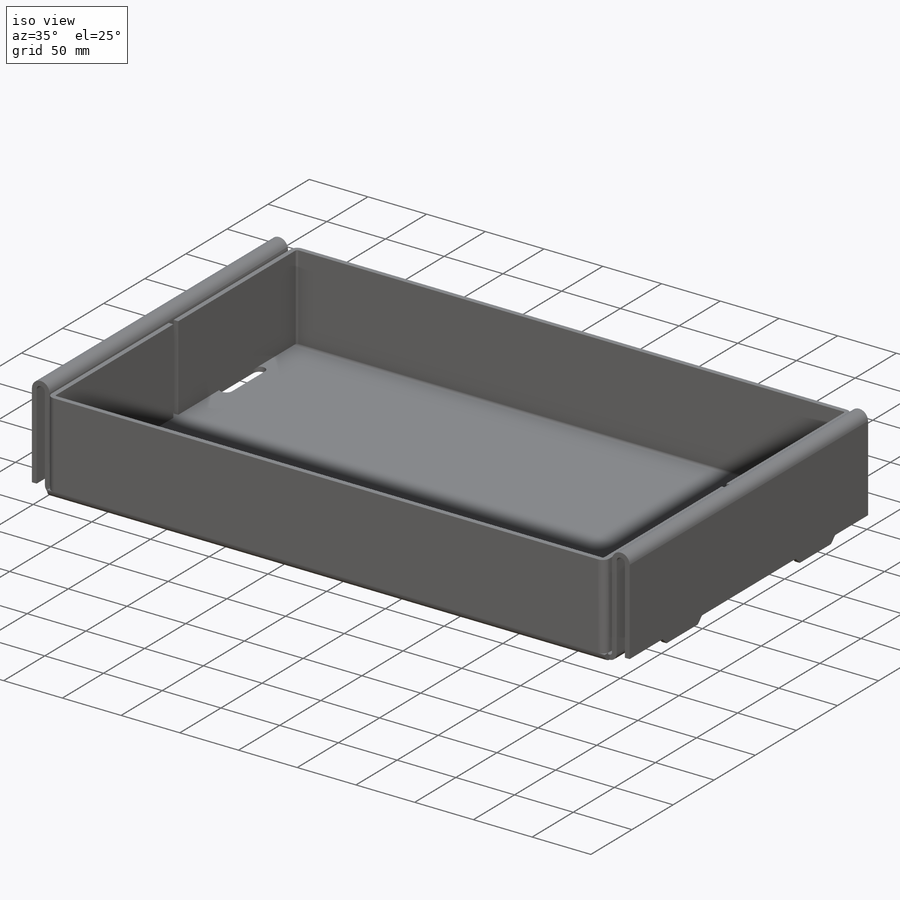
[diagram: iso view]
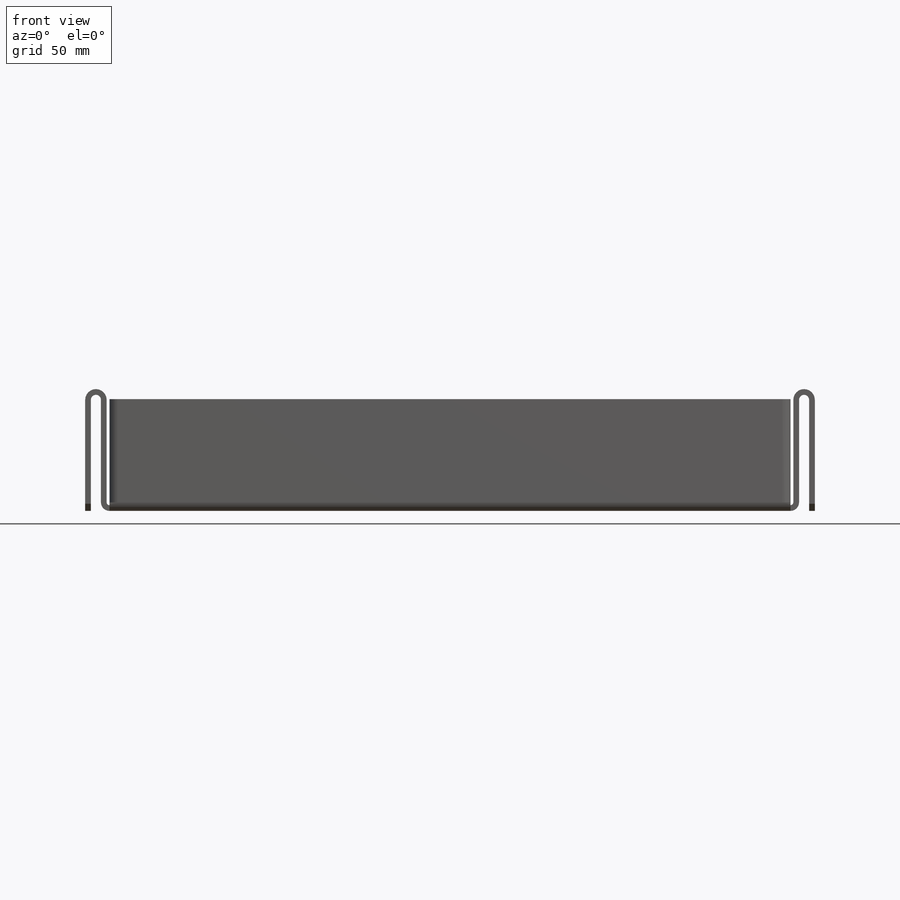
[diagram: front view]
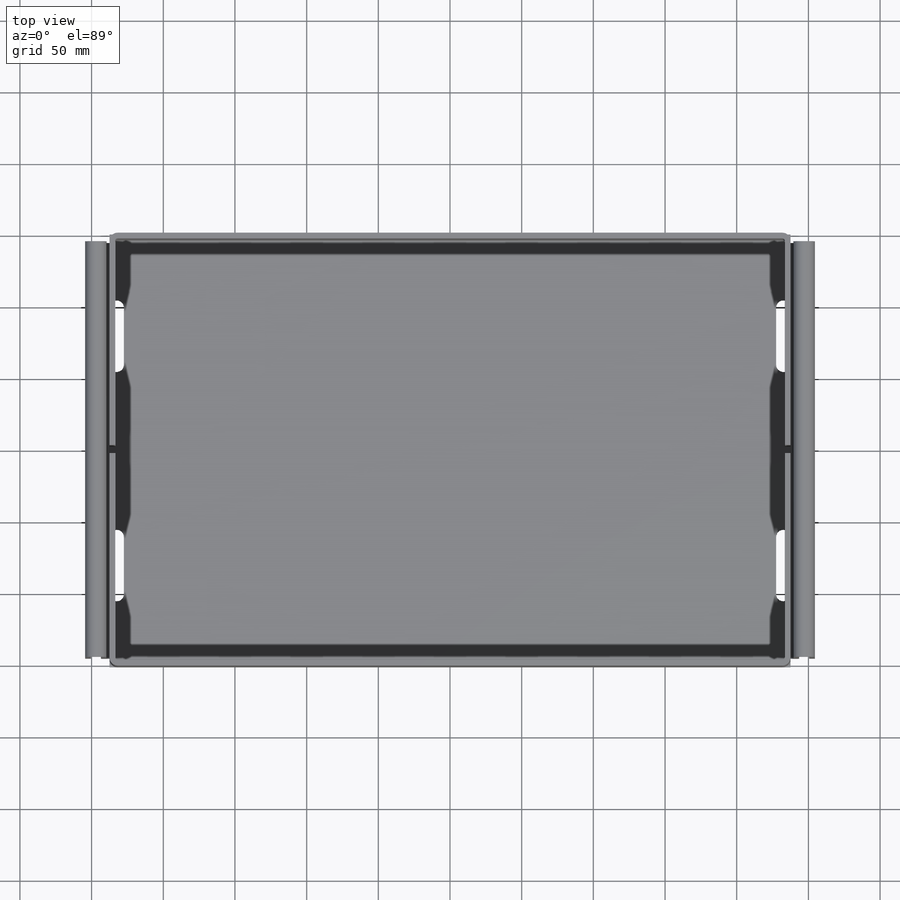
[diagram: top view]
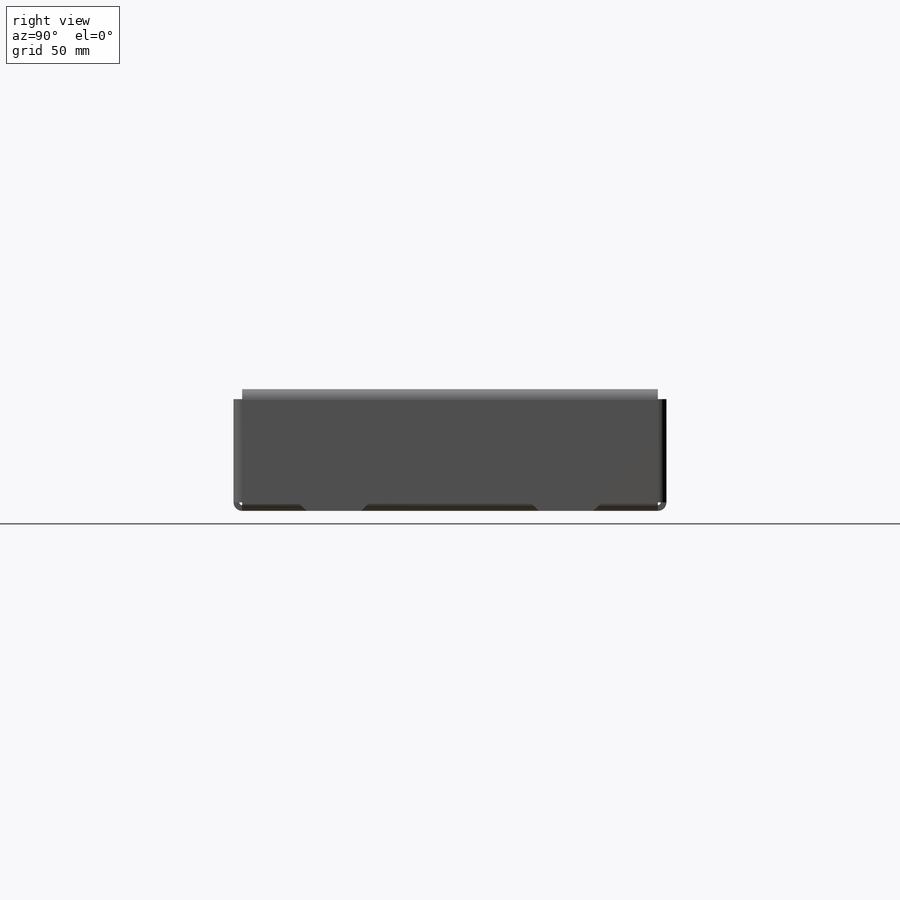
[diagram: right view]
SOLIDWORKS PART (.sldprt)
format: sldprt  version: not decoded by parser v0  size: 675,840 bytes
history: native  units: mm
features: sketch x36, sheet_metal_op x20, mirror x4, plane x3, material x1, cut_extrude x1, extrude x1 + 11 further entries (+10 scaffold rows collapsed; 1 parser-record rows omitted)
feature tree (88):
  scaffold x10  (default folders/planes/origin — collapsed)
  material  "Material <not specified>"
  plane  "Alzado"
  plane  "Planta"
  plane  "Vista lateral"
  sketch  "Sketch2"  dims[c1.D1=302.0mm c1.D2=475.0mm c2.D1=1.6mm c2.D2=0.5 c2.D3=0.0mm c2.D6=500.0mm]
  sheet_metal_op  "Base-Flange1"
  sketch  "Sketch11"
  sketch  "Sketch12"  dims[D1=2.0mm D4=90.0deg D5=1.0 D8=2.0mm D9=2.0mm]
  sheet_metal_op  "EdgeBend2"  Edge-Flange2=0
  sketch  "Sketch17"
  sketch  "Sketch18"
  sheet_metal_op  "EdgeBend3"
  sheet_metal_op  "EdgeBend4"  Edge-Flange3=0
  sketch  "Sketch37"
  sketch  "Sketch38"
  sketch  "Sketch39"
  sketch  "Sketch40"
  sheet_metal_op  "EdgeBend5"
  sheet_metal_op  "EdgeBend6"
  sheet_metal_op  "EdgeBend7"
  sheet_metal_op  "EdgeBend8"
  sketch  "Sketch42"
  sketch  "Sketch44"
  sheet_metal_op  "HemBend1"
  sheet_metal_op  "HemBend2"
  parser-record x1  (decoder bookkeeping rows leaked as tree rows — omitted from the tree; the rows remain in map.json)
  "Unfold2"
  sketch  "Sketch45"  dims[c1.D1=5.0mm c1.D2=5.0mm c1.D4=5.0mm c1.D3=50.0mm c2.D4=40.0mm c2.D3=50.0mm c3.D4=40.0mm c3.D5=40.0mm]
  cut_extrude  "Cut-Extrude1"  [1 undecoded]
  mirror  "Mirror1"
  mirror  "Mirror2"
  sketch  "Sketch46"  dims[D1=38.0mm D2=5.0mm D3=48.0mm D4=40.0mm D5=0.0mm]
  extrude  "Boss-Extrude1"  [1 undecoded]
  mirror  "Mirror3"
  mirror  "Mirror4"
  sketch  "Sketch46-1"  dims[D1=38.0mm D2=5.0mm D3=48.0mm D4=40.0mm D5=0.0mm]
  sketch  "Bend-Lines1"
  sketch  "Bounding-Box1"
  sheet_metal_op  "Sheet-Metal1"
  "Flat-Pattern1"
  sketch  "Bend-Lines2"
  sketch  "Bounding-Box2"
  sheet_metal_op  "Sheet-Metal2"
  "Flat-Pattern1"
  sketch  "Bend-Lines2"
  sketch  "Bounding-Box2"
  sheet_metal_op  "Sheet-Metal3"
  "Flat-Pattern1"
  sketch  "Bend-Lines2"
  sketch  "Bounding-Box2"
  sheet_metal_op  "Sheet-Metal4"
  "Flat-Pattern1"
  sketch  "Bend-Lines2"
  sketch  "Bounding-Box2"
  sheet_metal_op  "Sheet-Metal5"
  "Flat-Pattern1"
  sketch  "Bend-Lines2"
  sketch  "Bounding-Box2"
  sheet_metal_op  "Sheet-Metal6"
  "Flat-Pattern1"
  sketch  "Bend-Lines2"
  sketch  "Bounding-Box2"
  sheet_metal_op  "Sheet-Metal7"
  "Flat-Pattern1"
  sketch  "Bend-Lines2"
  sketch  "Bounding-Box2"
  sheet_metal_op  "Sheet-Metal8"
  "Flat-Pattern1"
  sketch  "Bend-Lines2"
  sketch  "Bounding-Box2"
  sheet_metal_op  "Sheet-Metal9"
  "Flat-Pattern1"
  sketch  "Bend-Lines2"
  sketch  "Bounding-Box2"
  sheet_metal_op  "Sheet-Metal10"
  "Flat-Pattern1"
  sketch  "Bend-Lines2"
  sketch  "Bounding-Box2"
decode coverage: 7 of 62 modeling features carry decoded parameters; 11 rows unclassified (native names shown)
note: 2 parameter values undecoded
note: suppression state not decoded; provenance and decode notes live in map.json
